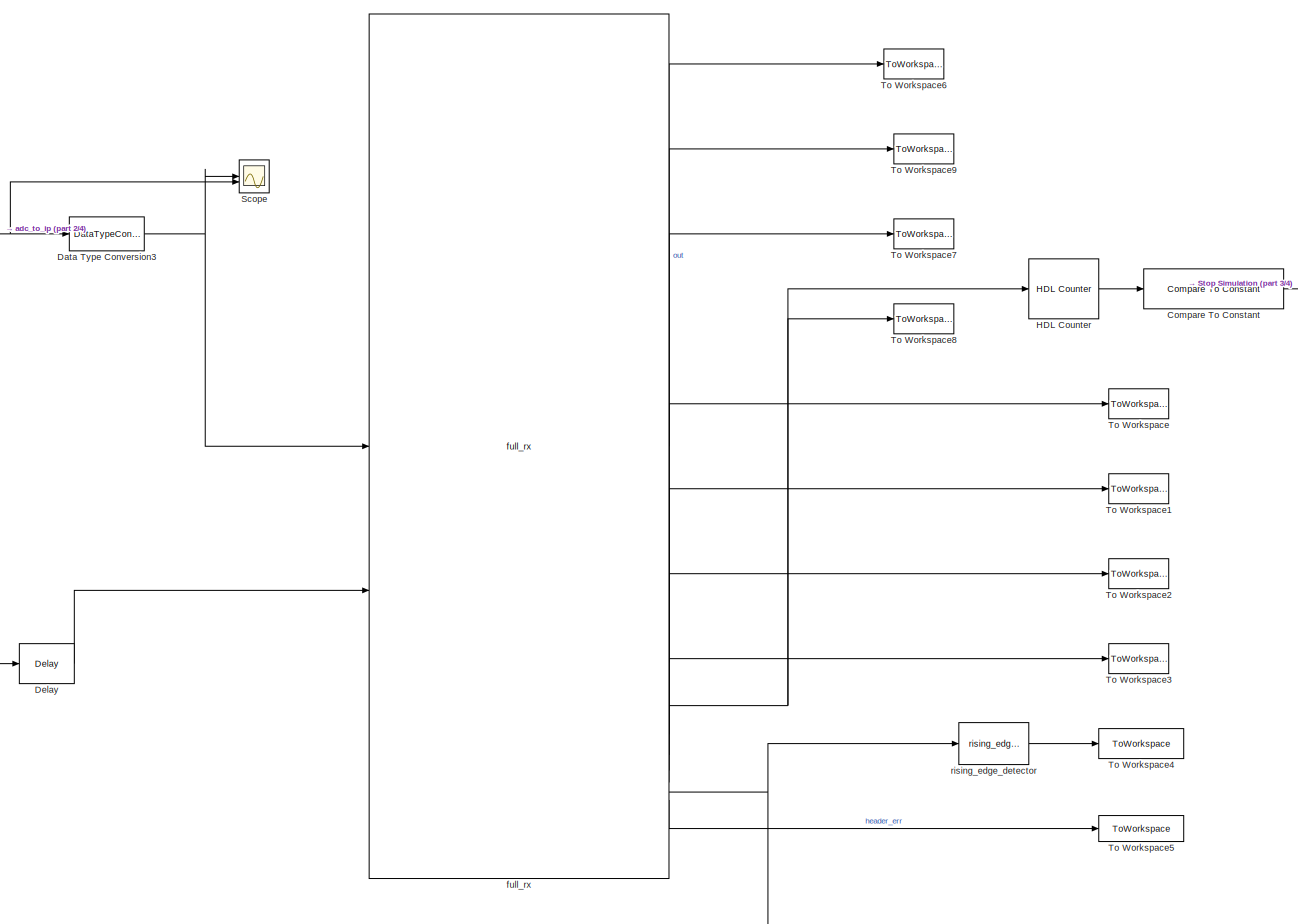
[diagram: root canvas - part 1/4, most of the canvas]
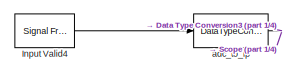
[diagram: root canvas - part 2/4, top left region]
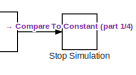
[diagram: root canvas - part 3/4, top right region]
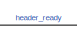
[diagram: root canvas - part 4/4, bottom center region]
MODEL slx_8eeae1e687a6
KIND model
CONFIG AbsTol = auto
CONFIG EnableMultiTasking = off
CONFIG FixedStep = auto
CONFIG MaxStep = auto
CONFIG MinStep = auto
CONFIG RelTol = 1e-3
CONFIG SampleTimeConstraint = Unconstrained
CONFIG SolverName = FixedStepDiscrete
CONFIG StartTime = 0.0
CONFIG StopTime = stopTime
BLOCK [Reference] Compare To Constant  REF=hdlsllib/Logic and Bit
Operations/Compare
To Constant
  SourceBlock = hdlsllib/Logic and Bit\nOperations/Compare\nTo Constant
  SourceType = Compare To Constant
BLOCK [DataTypeConversion] Data Type Conversion3
  ConvertRealWorld = Stored Integer (SI)
  OutDataTypeStr = int16
  RndMeth = Floor
  SaturateOnIntegerOverflow = off
BLOCK [Delay] Delay
  DelayLength = 100
  InitialCondition = 0
  InputPortMap = u0
  UseCircularBuffer = on
  UserDataPersistent = on
BLOCK [Reference] HDL Counter  REF=hdlsllib/Sources/HDL Counter
  SourceBlock = hdlsllib/Sources/HDL Counter
  SourceType = HDL Counter
BLOCK [Reference] Input Valid4  REF=dspsrcs4/Signal From
Workspace
  SourceBlock = dspsrcs4/Signal From\nWorkspace
  SourceType = Signal From Workspace
BLOCK [Scope] Scope
  Floating = off
  NumInputPorts = 2
  ScopeSpecificationString = Simulink.scopes.TimeScopeBlockCfg('CurrentConfiguration', extmgr.ConfigurationSet(extmgr.Configuration('Core','General UI',true),extmgr.Configuration('Core','Source UI',true),extmgr.Configuration('Sources','WiredSimulink',true,'DataLoggingSaveFormat','Array','DataLoggingDecimation','1'),extmgr.Configuration('Visuals','Time Domain',true,'SerializedDisplays',{struct('MinYLimReal','-5420.875','MaxYLi...<+2476ch>
BLOCK [Stop] Stop Simulation
BLOCK [ToWorkspace] To Workspace
  MaxDataPoints = inf
  SampleTime = 1/CONST.fs
  Save2DSignal = 2-D array (concatenate along first dimension)
  VariableName = reg0Out
BLOCK [ToWorkspace] To Workspace1
  MaxDataPoints = inf
  SampleTime = 1/CONST.fs
  Save2DSignal = 2-D array (concatenate along first dimension)
  VariableName = reg1Out
BLOCK [ToWorkspace] To Workspace2
  MaxDataPoints = inf
  SampleTime = 1/CONST.fs
  Save2DSignal = 2-D array (concatenate along first dimension)
  VariableName = reg2Out
BLOCK [ToWorkspace] To Workspace3
  MaxDataPoints = inf
  SampleTime = 1/CONST.fs
  Save2DSignal = 2-D array (concatenate along first dimension)
  VariableName = reg3Out
BLOCK [ToWorkspace] To Workspace4
  MaxDataPoints = inf
  SampleTime = 1/CONST.fs
  Save2DSignal = 2-D array (concatenate along first dimension)
  VariableName = headerEndOut
BLOCK [ToWorkspace] To Workspace5
  MaxDataPoints = inf
  SampleTime = 1/CONST.fs
  Save2DSignal = 2-D array (concatenate along first dimension)
  VariableName = headerErrOut
BLOCK [ToWorkspace] To Workspace6
  MaxDataPoints = inf
  SampleTime = 1/CONST.fs
  Save2DSignal = 2-D array (concatenate along first dimension)
  VariableName = dataOut
BLOCK [ToWorkspace] To Workspace7
  MaxDataPoints = inf
  SampleTime = 1/CONST.fs
  Save2DSignal = 2-D array (concatenate along first dimension)
  VariableName = startOut
BLOCK [ToWorkspace] To Workspace8
  MaxDataPoints = inf
  SampleTime = 1/CONST.fs
  Save2DSignal = 2-D array (concatenate along first dimension)
  VariableName = endOut
BLOCK [ToWorkspace] To Workspace9
  MaxDataPoints = inf
  SampleTime = 1/CONST.fs
  Save2DSignal = 2-D array (concatenate along first dimension)
  VariableName = validOut
BLOCK [DataTypeConversion] adc_to_ip
  OutDataTypeStr = CONST.ADCDataType
  RndMeth = Floor
  SaturateOnIntegerOverflow = off
BLOCK [Reference] full_rx  REF=HDL_ieee_8021513/full_rx
  SourceBlock = HDL_ieee_8021513/full_rx
  SourceProductName = HDL IEEE 8021513
  SourceType = SubSystem
BLOCK [Reference] rising_edge_detector  REF=HDL_ieee_8021513/rising_edge_detector
  SourceBlock = HDL_ieee_8021513/rising_edge_detector
  SourceProductName = HDL IEEE 8021513
  SourceType = SubSystem
LINE Compare To Constant:1 -> Stop Simulation:1
NET Data Type Conversion3:1 -> Scope:1, full_rx:1
LINE Delay:1 -> full_rx:2
LINE HDL Counter:1 -> Compare To Constant:1
LINE Input Valid4:1 -> adc_to_ip:1
NET adc_to_ip:1 -> Data Type Conversion3:1, Scope:2
LINE full_rx:1 -> To Workspace6:1
LINE full_rx:10 -> To Workspace5:1
LINE full_rx:2 -> To Workspace9:1
LINE full_rx:3 -> To Workspace7:1
NET full_rx:4 -> HDL Counter:1, To Workspace8:1
LINE full_rx:5 -> To Workspace:1
LINE full_rx:6 -> To Workspace1:1
LINE full_rx:7 -> To Workspace2:1
LINE full_rx:8 -> To Workspace3:1
NET full_rx:9 -> Delay:1, rising_edge_detector:1
LINE rising_edge_detector:1 -> To Workspace4:1
note: NET lines group one-source signal fan-out (src -> all destinations, sorted); 1:1 wires keep LINE
